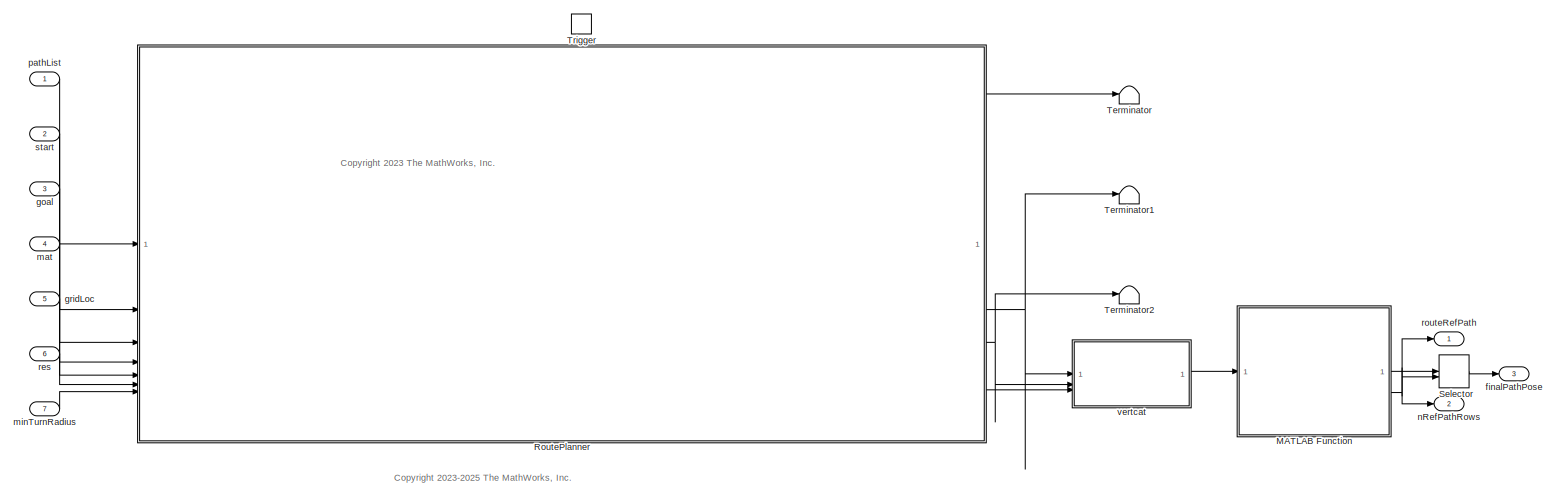
[diagram: root canvas - part 1/1, most of the canvas]
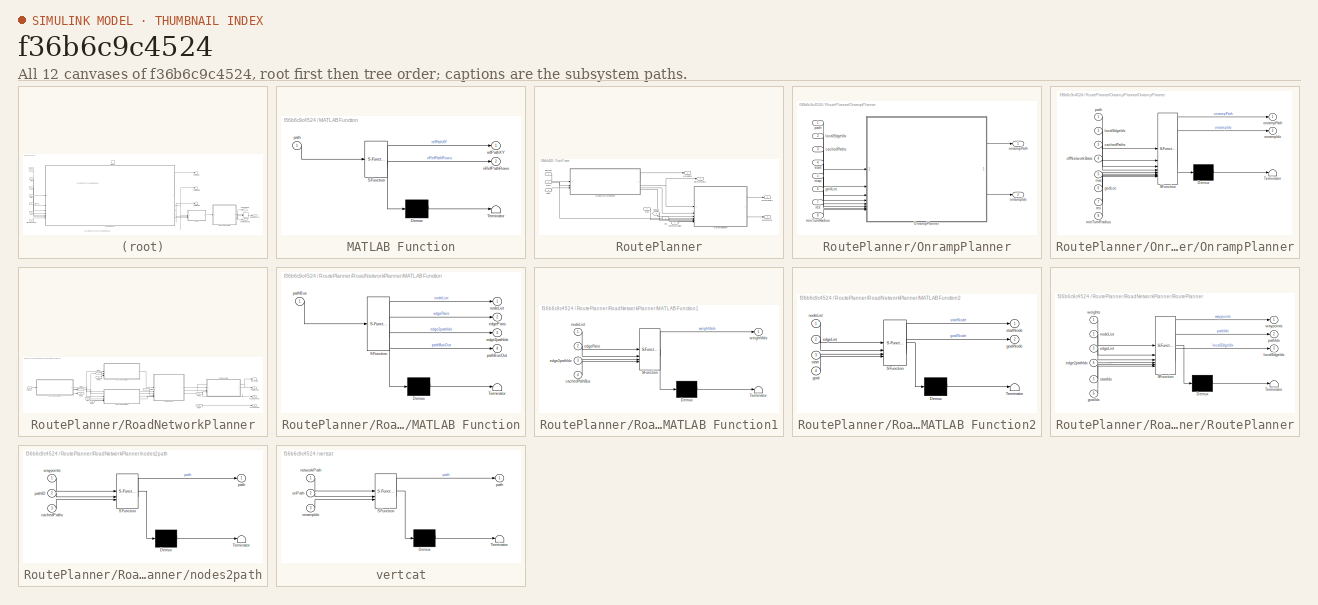
[diagram: thumbnail index - all 12 canvases of the model, root first then tree order]
MODEL slx_f36b6c9c4524
KIND model
CONFIG AbsTol = auto
CONFIG EnableMultiTasking = off
CONFIG FixedStep = auto
CONFIG MaxStep = auto
CONFIG MinStep = auto
CONFIG RelTol = 1e-3
CONFIG SampleTimeConstraint = Unconstrained
CONFIG SolverName = FixedStepAuto
CONFIG StartTime = 0.0
CONFIG StopTime = 1
BLOCK [SubSystem] MATLAB Function
  ErrorFcn = Stateflow.Translate.translate
  LibrarySourceBlock = simulink/User-Defined\nFunctions/MATLAB Function
  PermitHierarchicalResolution = ExplicitOnly
  SFBlockType = MATLAB Function
  TreatAsAtomicUnit = on
BLOCK [Demux] MATLAB Function/ Demux 
  Outputs = 1
BLOCK [S-Function] MATLAB Function/ SFunction 
  EnableBusSupport = on
  FunctionName = sf_sfun
  Parameters = maxRefPathLen
  PortCounts = [1 3]
  SFcnIsStateOwnerBlock = off
  SFunctionDeploymentMode = off
  Tag = Stateflow S-Function 8
BLOCK [Terminator] MATLAB Function/ Terminator 
BLOCK [Outport] MATLAB Function/nRefPathRows
  Port = 2
BLOCK [Inport] MATLAB Function/path
BLOCK [Outport] MATLAB Function/refPathXY
BLOCK [SubSystem] RoutePlanner
BLOCK [SubSystem] RoutePlanner/OnrampPlanner
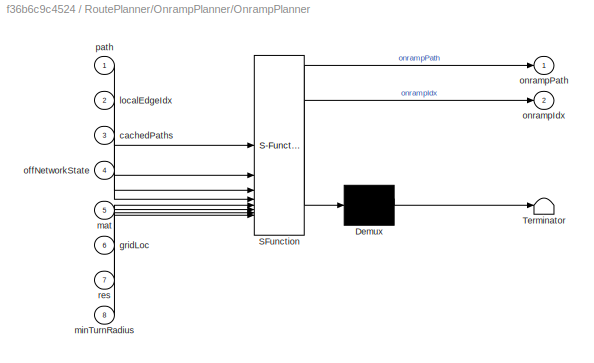
BLOCK [SubSystem] RoutePlanner/OnrampPlanner/OnrampPlanner
  ErrorFcn = Stateflow.Translate.translate
  LibrarySourceBlock = simulink/User-Defined\nFunctions/MATLAB Function
  PermitHierarchicalResolution = ExplicitOnly
  SFBlockType = MATLAB Function
  TreatAsAtomicUnit = on
BLOCK [Demux] RoutePlanner/OnrampPlanner/OnrampPlanner/ Demux 
  Outputs = 1
BLOCK [S-Function] RoutePlanner/OnrampPlanner/OnrampPlanner/ SFunction 
  EnableBusSupport = on
  FunctionName = sf_sfun
  Parameters = length,width
  PortCounts = [8 3]
  SFcnIsStateOwnerBlock = off
  SFunctionDeploymentMode = off
  Tag = Stateflow S-Function 6
BLOCK [Terminator] RoutePlanner/OnrampPlanner/OnrampPlanner/ Terminator 
BLOCK [Inport] RoutePlanner/OnrampPlanner/OnrampPlanner/cachedPaths
  Port = 3
BLOCK [Inport] RoutePlanner/OnrampPlanner/OnrampPlanner/gridLoc
  Port = 6
BLOCK [Inport] RoutePlanner/OnrampPlanner/OnrampPlanner/localEdgeIdx
  Port = 2
BLOCK [Inport] RoutePlanner/OnrampPlanner/OnrampPlanner/mat
  Port = 5
BLOCK [Inport] RoutePlanner/OnrampPlanner/OnrampPlanner/minTurnRadius
  Port = 8
BLOCK [Inport] RoutePlanner/OnrampPlanner/OnrampPlanner/offNetworkState
  Port = 4
BLOCK [Outport] RoutePlanner/OnrampPlanner/OnrampPlanner/onrampIdx
  Port = 2
BLOCK [Outport] RoutePlanner/OnrampPlanner/OnrampPlanner/onrampPath
BLOCK [Inport] RoutePlanner/OnrampPlanner/OnrampPlanner/path
BLOCK [Inport] RoutePlanner/OnrampPlanner/OnrampPlanner/res
  Port = 7
BLOCK [Inport] RoutePlanner/OnrampPlanner/cachedPaths
  Port = 3
BLOCK [Inport] RoutePlanner/OnrampPlanner/gridLoc
  Port = 6
BLOCK [Inport] RoutePlanner/OnrampPlanner/localEdgeIdx
  Port = 2
BLOCK [Inport] RoutePlanner/OnrampPlanner/map
  Port = 5
BLOCK [Inport] RoutePlanner/OnrampPlanner/minTurnRadius
  Port = 8
BLOCK [Outport] RoutePlanner/OnrampPlanner/onrampIdx
  Port = 2
BLOCK [Outport] RoutePlanner/OnrampPlanner/onrampPath
BLOCK [Inport] RoutePlanner/OnrampPlanner/path
BLOCK [Inport] RoutePlanner/OnrampPlanner/res
  Port = 7
BLOCK [Inport] RoutePlanner/OnrampPlanner/start
  Port = 4
BLOCK [SubSystem] RoutePlanner/RoadNetworkPlanner
BLOCK [From] RoutePlanner/RoadNetworkPlanner/From
BLOCK [From] RoutePlanner/RoadNetworkPlanner/From1
  GotoTag = B
BLOCK [From] RoutePlanner/RoadNetworkPlanner/From2
  GotoTag = B
BLOCK [From] RoutePlanner/RoadNetworkPlanner/From3
BLOCK [From] RoutePlanner/RoadNetworkPlanner/From4
  GotoTag = B
BLOCK [Goto] RoutePlanner/RoadNetworkPlanner/Goto
BLOCK [Goto] RoutePlanner/RoadNetworkPlanner/Goto1
  GotoTag = B
BLOCK [SubSystem] RoutePlanner/RoadNetworkPlanner/MATLAB Function
  ErrorFcn = Stateflow.Translate.translate
  LibrarySourceBlock = simulink/User-Defined\nFunctions/MATLAB Function
  LoadFcn = maxElementPerEdge = inf;
  PermitHierarchicalResolution = ExplicitOnly
  SFBlockType = MATLAB Function
  TreatAsAtomicUnit = on
BLOCK [Demux] RoutePlanner/RoadNetworkPlanner/MATLAB Function/ Demux 
  Outputs = 1
BLOCK [S-Function] RoutePlanner/RoadNetworkPlanner/MATLAB Function/ SFunction 
  EnableBusSupport = on
  FunctionName = sf_sfun
  Parameters = maxElementPerEdge,visualize
  PortCounts = [1 5]
  SFcnIsStateOwnerBlock = off
  SFunctionDeploymentMode = off
  Tag = Stateflow S-Function 1
BLOCK [Terminator] RoutePlanner/RoadNetworkPlanner/MATLAB Function/ Terminator 
BLOCK [Outport] RoutePlanner/RoadNetworkPlanner/MATLAB Function/edge2pathIdx
  Port = 3
BLOCK [Outport] RoutePlanner/RoadNetworkPlanner/MATLAB Function/edgePairs
  Port = 2
BLOCK [Outport] RoutePlanner/RoadNetworkPlanner/MATLAB Function/nodeList
BLOCK [Inport] RoutePlanner/RoadNetworkPlanner/MATLAB Function/pathBus
BLOCK [Outport] RoutePlanner/RoadNetworkPlanner/MATLAB Function/pathBusOut
  Port = 4
BLOCK [SubSystem] RoutePlanner/RoadNetworkPlanner/MATLAB Function1
  ErrorFcn = Stateflow.Translate.translate
  LibrarySourceBlock = simulink/User-Defined\nFunctions/MATLAB Function
  PermitHierarchicalResolution = ExplicitOnly
  SFBlockType = MATLAB Function
  TreatAsAtomicUnit = on
BLOCK [Demux] RoutePlanner/RoadNetworkPlanner/MATLAB Function1/ Demux 
  Outputs = 1
BLOCK [S-Function] RoutePlanner/RoadNetworkPlanner/MATLAB Function1/ SFunction 
  EnableBusSupport = on
  FunctionName = sf_sfun
  PortCounts = [4 2]
  SFcnIsStateOwnerBlock = off
  SFunctionDeploymentMode = off
  Tag = Stateflow S-Function 3
BLOCK [Terminator] RoutePlanner/RoadNetworkPlanner/MATLAB Function1/ Terminator 
BLOCK [Inport] RoutePlanner/RoadNetworkPlanner/MATLAB Function1/cachedPathBus
  Port = 4
BLOCK [Inport] RoutePlanner/RoadNetworkPlanner/MATLAB Function1/edge2pathIdx
  Port = 3
BLOCK [Inport] RoutePlanner/RoadNetworkPlanner/MATLAB Function1/edgePairs
  Port = 2
BLOCK [Inport] RoutePlanner/RoadNetworkPlanner/MATLAB Function1/nodeList
BLOCK [Outport] RoutePlanner/RoadNetworkPlanner/MATLAB Function1/weightVals
BLOCK [SubSystem] RoutePlanner/RoadNetworkPlanner/MATLAB Function2
  ErrorFcn = Stateflow.Translate.translate
  LibrarySourceBlock = simulink/User-Defined\nFunctions/MATLAB Function
  PermitHierarchicalResolution = ExplicitOnly
  SFBlockType = MATLAB Function
  TreatAsAtomicUnit = on
BLOCK [Demux] RoutePlanner/RoadNetworkPlanner/MATLAB Function2/ Demux 
  Outputs = 1
BLOCK [S-Function] RoutePlanner/RoadNetworkPlanner/MATLAB Function2/ SFunction 
  EnableBusSupport = on
  FunctionName = sf_sfun
  PortCounts = [4 3]
  SFcnIsStateOwnerBlock = off
  SFunctionDeploymentMode = off
  Tag = Stateflow S-Function 4
BLOCK [Terminator] RoutePlanner/RoadNetworkPlanner/MATLAB Function2/ Terminator 
BLOCK [Inport] RoutePlanner/RoadNetworkPlanner/MATLAB Function2/edgeList
  Port = 2
BLOCK [Inport] RoutePlanner/RoadNetworkPlanner/MATLAB Function2/goal
  Port = 4
BLOCK [Outport] RoutePlanner/RoadNetworkPlanner/MATLAB Function2/goalNode
  Port = 2
BLOCK [Inport] RoutePlanner/RoadNetworkPlanner/MATLAB Function2/nodeList
BLOCK [Inport] RoutePlanner/RoadNetworkPlanner/MATLAB Function2/start
  Port = 3
BLOCK [Outport] RoutePlanner/RoadNetworkPlanner/MATLAB Function2/startNode
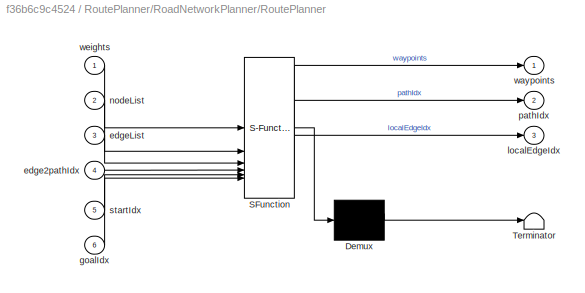
BLOCK [SubSystem] RoutePlanner/RoadNetworkPlanner/RoutePlanner
  ErrorFcn = Stateflow.Translate.translate
  LibrarySourceBlock = simulink/User-Defined\nFunctions/MATLAB Function
  PermitHierarchicalResolution = ExplicitOnly
  SFBlockType = MATLAB Function
  TreatAsAtomicUnit = on
BLOCK [Demux] RoutePlanner/RoadNetworkPlanner/RoutePlanner/ Demux 
  Outputs = 1
BLOCK [S-Function] RoutePlanner/RoadNetworkPlanner/RoutePlanner/ SFunction 
  EnableBusSupport = on
  FunctionName = sf_sfun
  PortCounts = [6 4]
  SFcnIsStateOwnerBlock = off
  SFunctionDeploymentMode = off
  Tag = Stateflow S-Function 2
BLOCK [Terminator] RoutePlanner/RoadNetworkPlanner/RoutePlanner/ Terminator 
BLOCK [Inport] RoutePlanner/RoadNetworkPlanner/RoutePlanner/edge2pathIdx
  Port = 4
BLOCK [Inport] RoutePlanner/RoadNetworkPlanner/RoutePlanner/edgeList
  Port = 3
BLOCK [Inport] RoutePlanner/RoadNetworkPlanner/RoutePlanner/goalIdx
  Port = 6
BLOCK [Outport] RoutePlanner/RoadNetworkPlanner/RoutePlanner/localEdgeIdx
  Port = 3
BLOCK [Inport] RoutePlanner/RoadNetworkPlanner/RoutePlanner/nodeList
  Port = 2
BLOCK [Outport] RoutePlanner/RoadNetworkPlanner/RoutePlanner/pathIdx
  Port = 2
BLOCK [Inport] RoutePlanner/RoadNetworkPlanner/RoutePlanner/startIdx
  Port = 5
BLOCK [Outport] RoutePlanner/RoadNetworkPlanner/RoutePlanner/waypoints
BLOCK [Inport] RoutePlanner/RoadNetworkPlanner/RoutePlanner/weights
BLOCK [Outport] RoutePlanner/RoadNetworkPlanner/cachedPaths
  Port = 4
BLOCK [Inport] RoutePlanner/RoadNetworkPlanner/goal
  Port = 3
  PortDimensions = [1 3]
BLOCK [Outport] RoutePlanner/RoadNetworkPlanner/localEdgesIdx
  Port = 3
BLOCK [Outport] RoutePlanner/RoadNetworkPlanner/networkPath
  Port = 2
BLOCK [SubSystem] RoutePlanner/RoadNetworkPlanner/nodes2path
  ErrorFcn = Stateflow.Translate.translate
  LibrarySourceBlock = simulink/User-Defined\nFunctions/MATLAB Function
  PermitHierarchicalResolution = ExplicitOnly
  SFBlockType = MATLAB Function
  TreatAsAtomicUnit = on
BLOCK [Demux] RoutePlanner/RoadNetworkPlanner/nodes2path/ Demux 
  Outputs = 1
BLOCK [S-Function] RoutePlanner/RoadNetworkPlanner/nodes2path/ SFunction 
  EnableBusSupport = on
  FunctionName = sf_sfun
  PortCounts = [3 2]
  SFcnIsStateOwnerBlock = off
  SFunctionDeploymentMode = off
  Tag = Stateflow S-Function 5
BLOCK [Terminator] RoutePlanner/RoadNetworkPlanner/nodes2path/ Terminator 
BLOCK [Inport] RoutePlanner/RoadNetworkPlanner/nodes2path/cachedPaths
  Port = 3
BLOCK [Outport] RoutePlanner/RoadNetworkPlanner/nodes2path/path
BLOCK [Inport] RoutePlanner/RoadNetworkPlanner/nodes2path/pathID
  Port = 2
BLOCK [Inport] RoutePlanner/RoadNetworkPlanner/nodes2path/waypoints
BLOCK [Inport] RoutePlanner/RoadNetworkPlanner/pathList
BLOCK [Inport] RoutePlanner/RoadNetworkPlanner/start
  Port = 2
BLOCK [Outport] RoutePlanner/RoadNetworkPlanner/waypoints
  PortDimensions = [10000 2]
BLOCK [Inport] RoutePlanner/goal
  Port = 3
BLOCK [Inport] RoutePlanner/gridLoc
  Port = 5
BLOCK [Inport] RoutePlanner/mat
  Port = 4
BLOCK [Inport] RoutePlanner/minTurnRadius
  Port = 7
BLOCK [Outport] RoutePlanner/networkPath
  Port = 2
BLOCK [Outport] RoutePlanner/onrampIdx
  Port = 4
BLOCK [Outport] RoutePlanner/onrampPath
  Port = 3
BLOCK [Inport] RoutePlanner/pathList
BLOCK [Inport] RoutePlanner/res
  Port = 6
BLOCK [Inport] RoutePlanner/start
  Port = 2
BLOCK [Outport] RoutePlanner/waypoints
BLOCK [Selector] Selector
  IndexOptions = Index vector (port),Select all
  Indices = [1 3],1
  InputPortWidth = 3
  NumberOfDimensions = 2
  OutputSizes = 1,1
BLOCK [Terminator] Terminator
BLOCK [Terminator] Terminator1
BLOCK [Terminator] Terminator2
BLOCK [TriggerPort] Trigger
  PortDimensions = 1
  StatesWhenEnabling = held
  TriggerType = function-call
  VariantControl = (inherit)
BLOCK [Outport] finalPathPose
  Port = 3
BLOCK [Inport] goal
  Port = 3
BLOCK [Inport] gridLoc
  Port = 5
  PortDimensions = [1 2]
BLOCK [Inport] mat
  OutDataTypeStr = boolean
  Port = 4
  PortDimensions = [1201 1201]
BLOCK [Inport] minTurnRadius
  Port = 7
BLOCK [Outport] nRefPathRows
  Port = 2
BLOCK [Inport] pathList
  BusOutputAsStruct = on
  OutDataTypeStr = Bus: pathList_fixed_bus
BLOCK [Inport] res
  Port = 6
  PortDimensions = [1 1]
BLOCK [Outport] routeRefPath
  NameLocation = top
BLOCK [Inport] start
  Port = 2
BLOCK [SubSystem] vertcat
  ErrorFcn = Stateflow.Translate.translate
  LibrarySourceBlock = simulink/User-Defined\nFunctions/MATLAB Function
  PermitHierarchicalResolution = ExplicitOnly
  SFBlockType = MATLAB Function
  TreatAsAtomicUnit = on
BLOCK [Demux] vertcat/ Demux 
  Outputs = 1
BLOCK [S-Function] vertcat/ SFunction 
  EnableBusSupport = on
  FunctionName = sf_sfun
  PortCounts = [3 2]
  SFcnIsStateOwnerBlock = off
  SFunctionDeploymentMode = off
  Tag = Stateflow S-Function 7
BLOCK [Terminator] vertcat/ Terminator 
BLOCK [Inport] vertcat/networkPath
BLOCK [Inport] vertcat/onPath
  Port = 2
BLOCK [Inport] vertcat/onrampIdx
  Port = 3
BLOCK [Outport] vertcat/path
ANNOTATION (root): <copyright redacted>
ANNOTATION (root): <copyright redacted>
NET MATLAB Function:1 -> Selector:1, routeRefPath:1
NET MATLAB Function:2 -> Selector:2, nRefPathRows:1
LINE RoutePlanner/OnrampPlanner/OnrampPlanner:1 -> RoutePlanner/OnrampPlanner/onrampPath:1
LINE RoutePlanner/OnrampPlanner/OnrampPlanner:2 -> RoutePlanner/OnrampPlanner/onrampIdx:1
LINE RoutePlanner/OnrampPlanner/cachedPaths:1 -> RoutePlanner/OnrampPlanner/OnrampPlanner:3
LINE RoutePlanner/OnrampPlanner/gridLoc:1 -> RoutePlanner/OnrampPlanner/OnrampPlanner:6
LINE RoutePlanner/OnrampPlanner/localEdgeIdx:1 -> RoutePlanner/OnrampPlanner/OnrampPlanner:2
LINE RoutePlanner/OnrampPlanner/map:1 -> RoutePlanner/OnrampPlanner/OnrampPlanner:5
LINE RoutePlanner/OnrampPlanner/minTurnRadius:1 -> RoutePlanner/OnrampPlanner/OnrampPlanner:8
LINE RoutePlanner/OnrampPlanner/path:1 -> RoutePlanner/OnrampPlanner/OnrampPlanner:1
LINE RoutePlanner/OnrampPlanner/res:1 -> RoutePlanner/OnrampPlanner/OnrampPlanner:7
LINE RoutePlanner/OnrampPlanner/start:1 -> RoutePlanner/OnrampPlanner/OnrampPlanner:4
LINE RoutePlanner/OnrampPlanner:1 -> RoutePlanner/onrampPath:1
LINE RoutePlanner/OnrampPlanner:2 -> RoutePlanner/onrampIdx:1
LINE RoutePlanner/RoadNetworkPlanner/From1:1 -> RoutePlanner/RoadNetworkPlanner/MATLAB Function1:4
LINE RoutePlanner/RoadNetworkPlanner/From2:1 -> RoutePlanner/RoadNetworkPlanner/nodes2path:3
LINE RoutePlanner/RoadNetworkPlanner/From3:1 -> RoutePlanner/RoadNetworkPlanner/RoutePlanner:4
LINE RoutePlanner/RoadNetworkPlanner/From4:1 -> RoutePlanner/RoadNetworkPlanner/cachedPaths:1
LINE RoutePlanner/RoadNetworkPlanner/From:1 -> RoutePlanner/RoadNetworkPlanner/MATLAB Function1:3
LINE RoutePlanner/RoadNetworkPlanner/MATLAB Function1:1 -> RoutePlanner/RoadNetworkPlanner/RoutePlanner:1
LINE RoutePlanner/RoadNetworkPlanner/MATLAB Function2:1 -> RoutePlanner/RoadNetworkPlanner/RoutePlanner:5
LINE RoutePlanner/RoadNetworkPlanner/MATLAB Function2:2 -> RoutePlanner/RoadNetworkPlanner/RoutePlanner:6
NET RoutePlanner/RoadNetworkPlanner/MATLAB Function:1 -> RoutePlanner/RoadNetworkPlanner/MATLAB Function1:1, RoutePlanner/RoadNetworkPlanner/MATLAB Function2:1, RoutePlanner/RoadNetworkPlanner/RoutePlanner:2
NET RoutePlanner/RoadNetworkPlanner/MATLAB Function:2 -> RoutePlanner/RoadNetworkPlanner/MATLAB Function1:2, RoutePlanner/RoadNetworkPlanner/MATLAB Function2:2, RoutePlanner/RoadNetworkPlanner/RoutePlanner:3
LINE RoutePlanner/RoadNetworkPlanner/MATLAB Function:3 -> RoutePlanner/RoadNetworkPlanner/Goto:1
LINE RoutePlanner/RoadNetworkPlanner/MATLAB Function:4 -> RoutePlanner/RoadNetworkPlanner/Goto1:1
NET RoutePlanner/RoadNetworkPlanner/RoutePlanner:1 -> RoutePlanner/RoadNetworkPlanner/nodes2path:1, RoutePlanner/RoadNetworkPlanner/waypoints:1
LINE RoutePlanner/RoadNetworkPlanner/RoutePlanner:2 -> RoutePlanner/RoadNetworkPlanner/nodes2path:2
LINE RoutePlanner/RoadNetworkPlanner/RoutePlanner:3 -> RoutePlanner/RoadNetworkPlanner/localEdgesIdx:1
LINE RoutePlanner/RoadNetworkPlanner/goal:1 -> RoutePlanner/RoadNetworkPlanner/MATLAB Function2:4
LINE RoutePlanner/RoadNetworkPlanner/nodes2path:1 -> RoutePlanner/RoadNetworkPlanner/networkPath:1
LINE RoutePlanner/RoadNetworkPlanner/pathList:1 -> RoutePlanner/RoadNetworkPlanner/MATLAB Function:1
LINE RoutePlanner/RoadNetworkPlanner/start:1 -> RoutePlanner/RoadNetworkPlanner/MATLAB Function2:3
LINE RoutePlanner/RoadNetworkPlanner:1 -> RoutePlanner/waypoints:1
NET RoutePlanner/RoadNetworkPlanner:2 -> RoutePlanner/OnrampPlanner:1, RoutePlanner/networkPath:1
LINE RoutePlanner/RoadNetworkPlanner:3 -> RoutePlanner/OnrampPlanner:2
LINE RoutePlanner/RoadNetworkPlanner:4 -> RoutePlanner/OnrampPlanner:3
LINE RoutePlanner/goal:1 -> RoutePlanner/RoadNetworkPlanner:3
LINE RoutePlanner/gridLoc:1 -> RoutePlanner/OnrampPlanner:6
LINE RoutePlanner/mat:1 -> RoutePlanner/OnrampPlanner:5
LINE RoutePlanner/minTurnRadius:1 -> RoutePlanner/OnrampPlanner:8
LINE RoutePlanner/pathList:1 -> RoutePlanner/RoadNetworkPlanner:1
LINE RoutePlanner/res:1 -> RoutePlanner/OnrampPlanner:7
NET RoutePlanner/start:1 -> RoutePlanner/OnrampPlanner:4, RoutePlanner/RoadNetworkPlanner:2
LINE RoutePlanner:1 -> Terminator:1
NET RoutePlanner:2 -> Terminator1:1, vertcat:1
NET RoutePlanner:3 -> Terminator2:1, vertcat:2
LINE RoutePlanner:4 -> vertcat:3
LINE Selector:1 -> finalPathPose:1
LINE goal:1 -> RoutePlanner:3
LINE gridLoc:1 -> RoutePlanner:5
LINE mat:1 -> RoutePlanner:4
LINE minTurnRadius:1 -> RoutePlanner:7
LINE pathList:1 -> RoutePlanner:1
LINE res:1 -> RoutePlanner:6
LINE start:1 -> RoutePlanner:2
LINE vertcat:1 -> MATLAB Function:1
note: NET lines group one-source signal fan-out (src -> all destinations, sorted); 1:1 wires keep LINE
CHART MATLAB Function states=1 transitions=1
  STATE_LABEL 'eML_blk_kernel()'
  STATE_LABEL 'SCRIPT:\nfunction [refPathXY, nRefPathRows] = packPath(path, maxRefPathLen)\n\n    % Allocate output buffer\n    refPathXY = zeros(maxRefPathLen,3);\n    nRefPathRows = size(path,1);\n    refPathXY(1:nRefPathRows,:) = path;\nend'
CHART RoutePlanner/RoadNetworkPlanner/MATLAB Function states=1 transitions=1
  STATE_LABEL 'eML_blk_kernel()'
  STATE_LABEL 'SCRIPT:\nfunction [nodeList,edgePairs,edge2pathIdx,pathBusOut] = paths2edges(pathBus,maxElementPerEdge,visualize)\n    % Convert encoded bus to struct-array\n    pathList = exampleHelperDecodeBus(pathBus);\n    [nodeList,edgePairs,edge2pathIdx,cachedPaths] = exampleHelperPath2GraphData(pathList,maxElementPerEdge,visualize);\n\n    % Convert list now containing duplicate/reverse edges to bus\n    pathBusO...<+45ch>'
CHART RoutePlanner/RoadNetworkPlanner/RoutePlanner states=1 transitions=1
  STATE_LABEL 'eML_blk_kernel()'
  STATE_LABEL "SCRIPT:\nfunction [waypoints, pathIdx, localEdgeIdx] = routePlanner(weights,nodeList,edgeList,edge2pathIdx,startIdx,goalIdx)\n    stateTable = table(nodeList,VariableNames={'StateVector'});\n    linkTable = table(edgeList, weights(:), edge2pathIdx(:), VariableNames={'EndStates','Weight','Edge2PathIdx'});\n    graphPlanner = plannerAStar(navGraph(stateTable,linkTable));\n\n    % Plan a path on the graph\n...<+770ch>"
CHART RoutePlanner/RoadNetworkPlanner/MATLAB Function1 states=1 transitions=1
  STATE_LABEL 'eML_blk_kernel()'
  STATE_LABEL 'SCRIPT:\nfunction weightVals = computeEdgeWeights(nodeList, edgePairs, edge2pathIdx, cachedPathBus) %#ok<INUSD>\n    % Compute cost based on "euclidean" grid distance along path\n    cachedPaths = exampleHelperDecodeBus(cachedPathBus,Widths=2);\n    weightVals = exampleHelperDefaultEdgeCost(cachedPaths,edge2pathIdx);\nend'
CHART RoutePlanner/RoadNetworkPlanner/MATLAB Function2 states=1 transitions=1
  STATE_LABEL 'eML_blk_kernel()'
  STATE_LABEL 'SCRIPT:\nfunction [startNode,goalNode] = world2nearestnode(nodeList,edgeList,start,goal) %#ok<INUSD>\n    [~,startNode] = min(vecnorm(nodeList(:,1:2)-start(1:2),2,2));\n    [~,goalNode] = min(vecnorm(nodeList(:,1:2)-goal(1:2),2,2));\nend'
CHART RoutePlanner/RoadNetworkPlanner/nodes2path states=1 transitions=1
  STATE_LABEL 'eML_blk_kernel()'
  STATE_LABEL 'SCRIPT:\nfunction path = nodesequence2smoothpath(waypoints, pathID, cachedPaths) %#ok<INUSD>\n    % Convert network solution to path\n    pathList = exampleHelperDecodeBus(cachedPaths,Widths=2);\n    tmp = exampleHelperEncodeBus(pathList(pathID(:)));\n\n    % Smooth path\n    subsampleInterval = 3;\n    path = exampleHelperSmoothReferencePath(tmp.Path,subsampleInterval);\nend'
CHART RoutePlanner/OnrampPlanner/OnrampPlanner states=1 transitions=1
  STATE_LABEL 'eML_blk_kernel()'
  STATE_LABEL 'SCRIPT:\nfunction [onrampPath,onrampIdx] = OnrampPlanner(path,localEdgeIdx,cachedPaths,offNetworkState,mat,gridLoc,res,minTurnRadius,length,width)\n    localPathList = exampleHelperDecodeBus(cachedPaths,Widths=2);\n    map = binaryOccupancyMap(mat,res);\n    map.GridLocationInWorld = gridLoc(:)\';\n    l = coder.const(length);\n    w = coder.const(width);\n    vehDims = exampleHelperVehicleGeometry(l,w,"c...<+199ch>'
CHART vertcat states=1 transitions=1
  STATE_LABEL 'eML_blk_kernel()'
  STATE_LABEL 'SCRIPT:\nfunction path = fcn(networkPath,onPath, onrampIdx)\n\npath = vertcat(onPath,networkPath(onrampIdx:end,:));\n'
CHART  states=0 transitions=0
CHART  states=0 transitions=0
CHART  states=0 transitions=0
CHART  states=0 transitions=0
CHART  states=0 transitions=0
CHART  states=0 transitions=0
CHART  states=0 transitions=0
CHART  states=0 transitions=0
